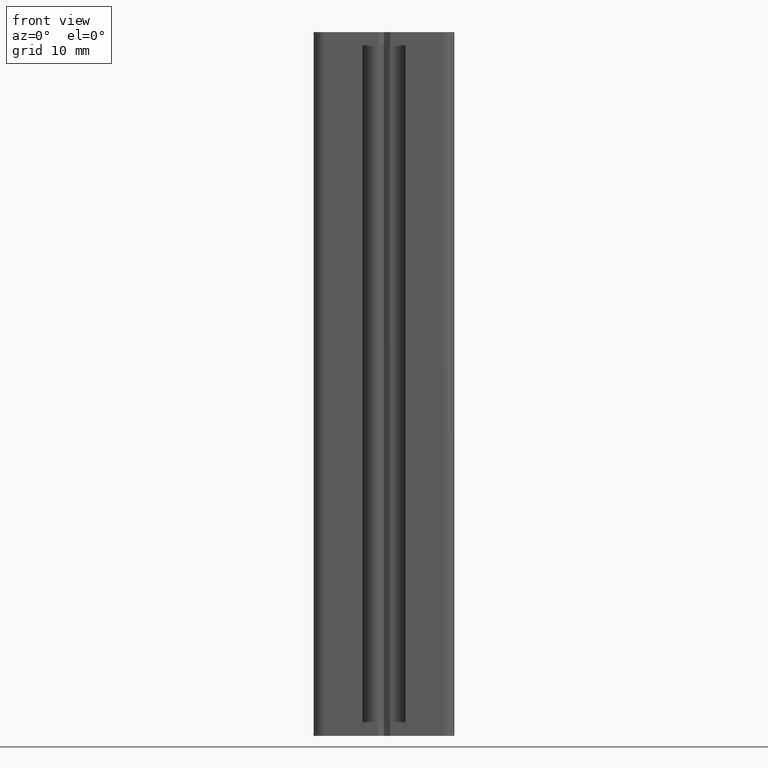
[diagram: clean part render]
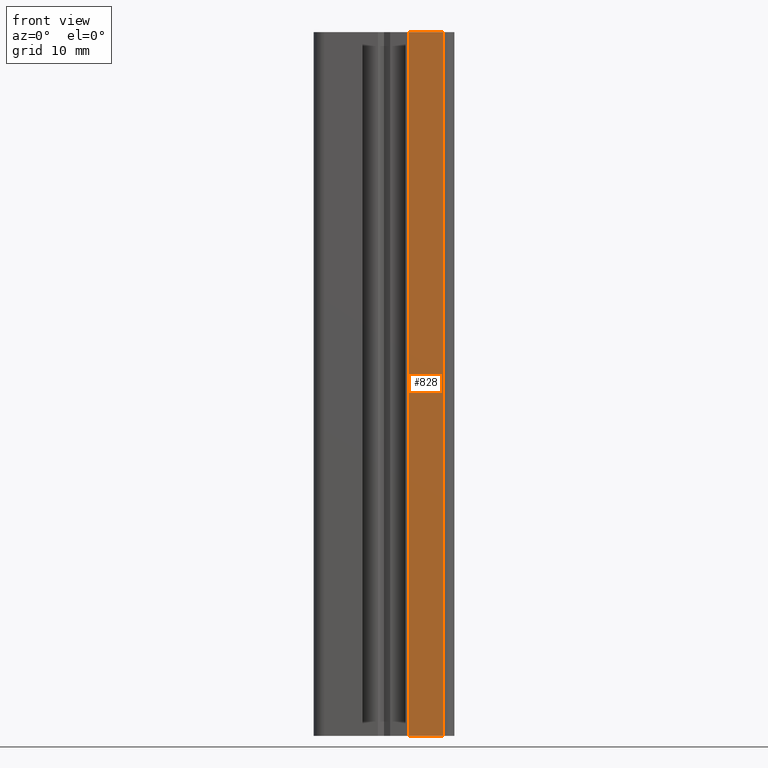
[diagram: same view with one face highlighted and labeled with its STEP entity id]
A machine part, front view. The second image highlights one B-rep face of the part: STEP entity #828.
In plain terms, the highlighted planar face has unit normal (0, 1, 0).
Its self-contained STEP definition (entity closure, byte-faithful):
#828 = ADVANCED_FACE ( 'NONE', ( #2922 ), #2858, .F. ) ;
#829 = EDGE_CURVE ( 'NONE', #1465, #4160, #2914, .T. ) ;
#831 = ORIENTED_EDGE ( 'NONE', *, *, #844, .T. ) ;
#832 = ORIENTED_EDGE ( 'NONE', *, *, #1461, .F. ) ;
#844 = EDGE_CURVE ( 'NONE', #1559, #4149, #2953, .T. ) ;
#845 = ORIENTED_EDGE ( 'NONE', *, *, #4151, .T. ) ;
#846 = ORIENTED_EDGE ( 'NONE', *, *, #829, .F. ) ;
#849 = EDGE_LOOP ( 'NONE', ( #845, #846, #832, #831 ) ) ;
#1461 = EDGE_CURVE ( 'NONE', #1559, #1465, #3855, .T. ) ;
#1465 = VERTEX_POINT ( 'NONE', #3866 ) ;
#1559 = VERTEX_POINT ( 'NONE', #3963 ) ;
#2858 = PLANE ( 'NONE',  #2920 ) ;
#2905 = DIRECTION ( 'NONE',  ( -0.0000000000000000000, -0.0000000000000000000, -1.000000000000000000 ) ) ;
#2906 = VECTOR ( 'NONE', #2905, 1000.000000000000000 ) ;
#2907 = CARTESIAN_POINT ( 'NONE',  ( 8.500000000000000000, -10.00000000000000000, 100.0000000000000000 ) ) ;
#2909 = DIRECTION ( 'NONE',  ( 0.0000000000000000000, -0.0000000000000000000, 1.000000000000000000 ) ) ;
#2910 = DIRECTION ( 'NONE',  ( 0.0000000000000000000, 1.000000000000000000, 0.0000000000000000000 ) ) ;
#2911 = CARTESIAN_POINT ( 'NONE',  ( 3.500000000000000000, -10.00000000000000000, 100.0000000000000000 ) ) ;
#2914 = LINE ( 'NONE', #2907, #2906 ) ;
#2920 = AXIS2_PLACEMENT_3D ( 'NONE', #2911, #2910, #2909 ) ;
#2922 = FACE_OUTER_BOUND ( 'NONE', #849, .T. ) ;
#2944 = DIRECTION ( 'NONE',  ( -0.0000000000000000000, -0.0000000000000000000, -1.000000000000000000 ) ) ;
#2945 = VECTOR ( 'NONE', #2944, 1000.000000000000000 ) ;
#2946 = CARTESIAN_POINT ( 'NONE',  ( 3.500000000000000000, -10.00000000000000000, 100.0000000000000000 ) ) ;
#2953 = LINE ( 'NONE', #2946, #2945 ) ;
#3852 = DIRECTION ( 'NONE',  ( 1.000000000000000000, 0.0000000000000000000, 0.0000000000000000000 ) ) ;
#3853 = VECTOR ( 'NONE', #3852, 1000.000000000000000 ) ;
#3854 = CARTESIAN_POINT ( 'NONE',  ( 3.500000000000000000, -10.00000000000000000, 100.0000000000000000 ) ) ;
#3855 = LINE ( 'NONE', #3854, #3853 ) ;
#3866 = CARTESIAN_POINT ( 'NONE',  ( 8.500000000000000000, -10.00000000000000000, 100.0000000000000000 ) ) ;
#3963 = CARTESIAN_POINT ( 'NONE',  ( 3.500000000000000000, -10.00000000000000000, 100.0000000000000000 ) ) ;
#3994 = CARTESIAN_POINT ( 'NONE',  ( 8.500000000000000000, -10.00000000000000000, 0.0000000000000000000 ) ) ;
#3997 = DIRECTION ( 'NONE',  ( 1.000000000000000000, 0.0000000000000000000, 0.0000000000000000000 ) ) ;
#3998 = VECTOR ( 'NONE', #3997, 1000.000000000000000 ) ;
#3999 = CARTESIAN_POINT ( 'NONE',  ( 3.500000000000000000, -10.00000000000000000, 0.0000000000000000000 ) ) ;
#4000 = LINE ( 'NONE', #3999, #3998 ) ;
#4012 = CARTESIAN_POINT ( 'NONE',  ( 3.500000000000000000, -10.00000000000000000, 0.0000000000000000000 ) ) ;
#4149 = VERTEX_POINT ( 'NONE', #4012 ) ;
#4151 = EDGE_CURVE ( 'NONE', #4149, #4160, #4000, .T. ) ;
#4160 = VERTEX_POINT ( 'NONE', #3994 ) ;